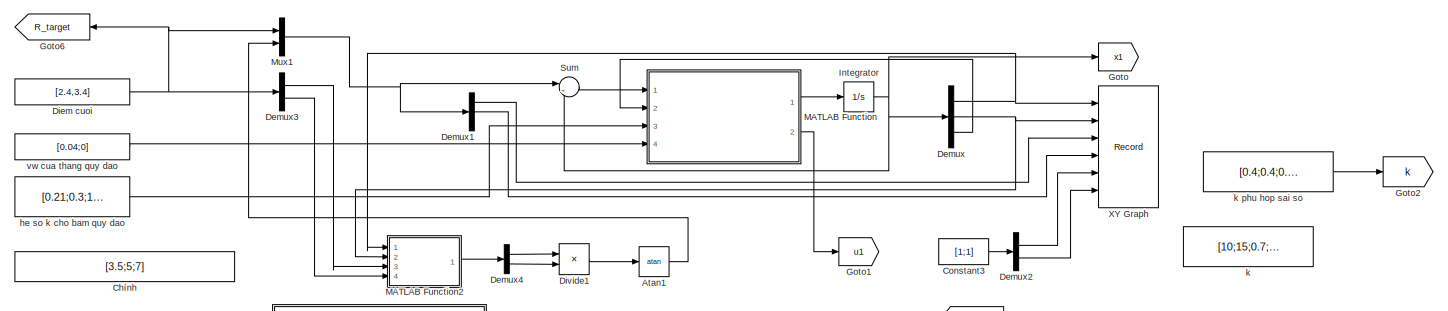
[diagram: root canvas - part 1/2, full width, top band]
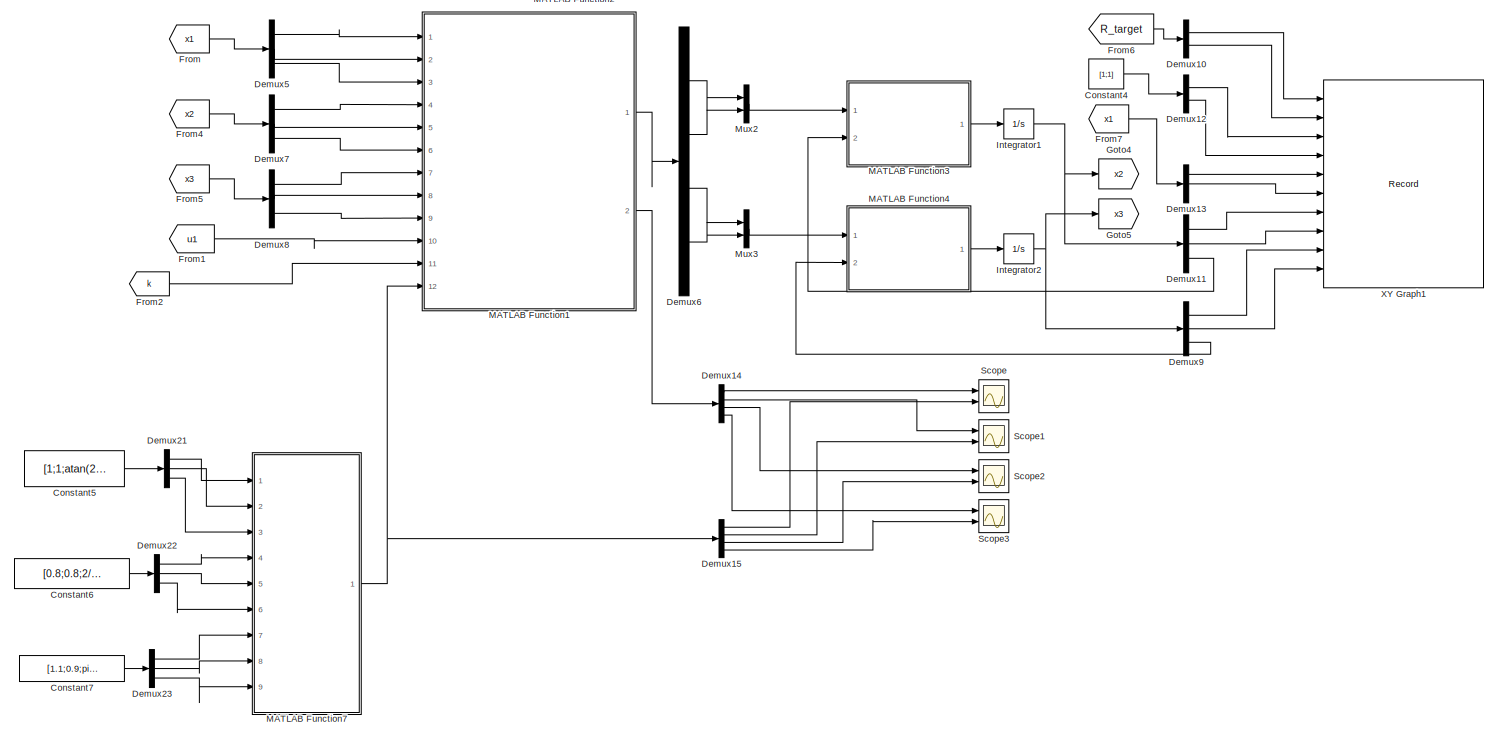
[diagram: root canvas - part 2/2, full width, middle band]
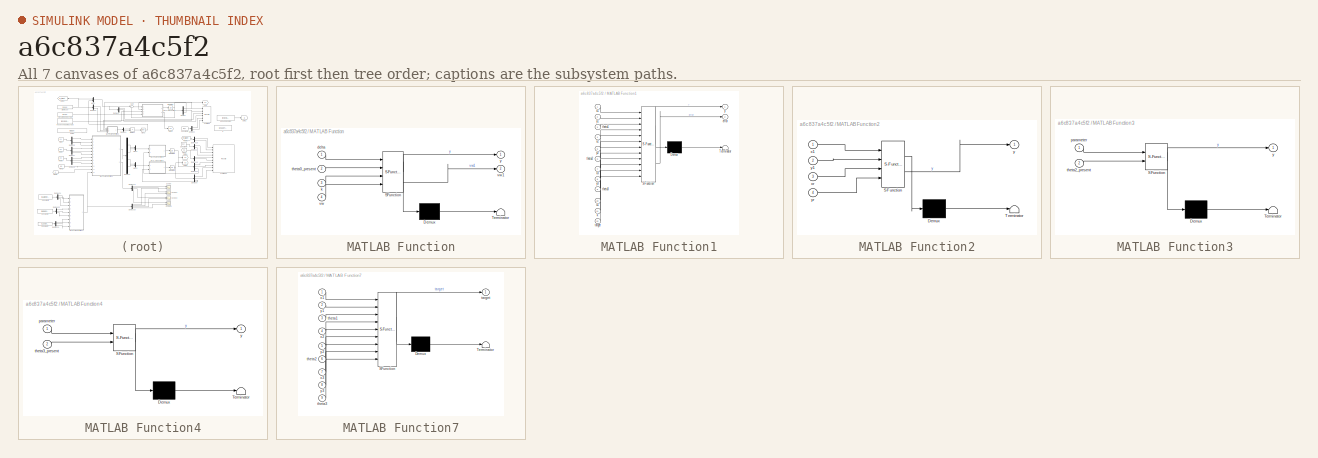
[diagram: thumbnail index - all 7 canvases of the model, root first then tree order]
MODEL slx_a6c837a4c5f2
KIND model
CONFIG AbsTol = auto
CONFIG EnableMultiTasking = off
CONFIG FixedStep = 0.01
CONFIG MaxStep = auto
CONFIG MinStep = auto
CONFIG RelTol = 1e-3
CONFIG SampleTimeConstraint = Unconstrained
CONFIG SolverName = FixedStepAuto
CONFIG StartTime = 0.0
CONFIG StopTime = 15
BLOCK [Trigonometry] Atan1
  Operator = atan
  Ports = [1, 1]
BLOCK [Constant] Chính
  Value = [3.5;5;7]
BLOCK [Constant] Constant3
  Value = [1;1]
BLOCK [Constant] Constant4
  Value = [1;1]
BLOCK [Constant] Constant5
  Value = [1;1;atan(2.4/1.4)]
BLOCK [Constant] Constant6
  Value = [0.8;0.8;2/3*pi]
BLOCK [Constant] Constant7
  Value = [1.1;0.9;pi/4]
BLOCK [Demux] Demux
  Outputs = 3
  Ports = [1, 3]
BLOCK [Demux] Demux1
  Outputs = 3
  Ports = [1, 3]
BLOCK [Demux] Demux10
  Outputs = 2
  Ports = [1, 2]
BLOCK [Demux] Demux11
  Outputs = 3
  Ports = [1, 3]
BLOCK [Demux] Demux12
  Outputs = 2
  Ports = [1, 2]
BLOCK [Demux] Demux13
  Outputs = 3
  Ports = [1, 3]
BLOCK [Demux] Demux14
  Ports = [1, 4]
BLOCK [Demux] Demux15
  Ports = [1, 4]
BLOCK [Demux] Demux2
  Outputs = 2
  Ports = [1, 2]
BLOCK [Demux] Demux21
  Outputs = 3
  Ports = [1, 3]
BLOCK [Demux] Demux22
  Outputs = 3
  Ports = [1, 3]
BLOCK [Demux] Demux23
  Outputs = 3
  Ports = [1, 3]
BLOCK [Demux] Demux3
  Outputs = 2
  Ports = [1, 2]
BLOCK [Demux] Demux4
  Outputs = 2
  Ports = [1, 2]
BLOCK [Demux] Demux5
  Outputs = 3
  Ports = [1, 3]
BLOCK [Demux] Demux6
  Ports = [1, 4]
BLOCK [Demux] Demux7
  Outputs = 3
  Ports = [1, 3]
BLOCK [Demux] Demux8
  Outputs = 3
  Ports = [1, 3]
BLOCK [Demux] Demux9
  Outputs = 3
  Ports = [1, 3]
BLOCK [Constant] Diem cuoi
  Value = [2.4,3.4]
BLOCK [Product] Divide1
  Inputs = /*
  Ports = [2, 1]
BLOCK [From] From
  GotoTag = x1
BLOCK [From] From1
  GotoTag = u1
BLOCK [From] From2
  GotoTag = k
BLOCK [From] From4
  GotoTag = x2
BLOCK [From] From5
  GotoTag = x3
BLOCK [From] From6
  GotoTag = R_target
BLOCK [From] From7
  GotoTag = x1
BLOCK [Goto] Goto
  GotoTag = x1
BLOCK [Goto] Goto1
  GotoTag = u1
BLOCK [Goto] Goto2
  GotoTag = k
BLOCK [Goto] Goto4
  GotoTag = x2
BLOCK [Goto] Goto5
  GotoTag = x3
BLOCK [Goto] Goto6
  GotoTag = R_target
  NameLocation = top
BLOCK [Integrator] Integrator
  InitialCondition = [1;1;atan(2.4/1.4)]
  Ports = [1, 1]
BLOCK [Integrator] Integrator1
  InitialCondition = [0.8;0.8;2/3*pi]
  Ports = [1, 1]
BLOCK [Integrator] Integrator2
  InitialCondition = [1.1;0.9;pi/4]
  Ports = [1, 1]
BLOCK [SubSystem] MATLAB Function
  ErrorFcn = Stateflow.Translate.translate
  PermitHierarchicalResolution = ExplicitOnly
  Ports = [4, 2]
  RequestExecContextInheritance = off
  SFBlockType = MATLAB Function
  TreatAsAtomicUnit = on
BLOCK [Demux] MATLAB Function/ Demux 
  Outputs = 1
  Ports = [1, 1]
BLOCK [S-Function] MATLAB Function/ SFunction 
  EnableBusSupport = on
  FunctionName = sf_sfun
  PortCounts = [4 3]
  Ports = [4, 3]
  SFcnIsStateOwnerBlock = off
  SFunctionDeploymentMode = off
  Tag = Stateflow S-Function 2
BLOCK [Terminator] MATLAB Function/ Terminator 
BLOCK [Inport] MATLAB Function/delta
BLOCK [Inport] MATLAB Function/k
  Port = 3
BLOCK [Inport] MATLAB Function/theta0_present
  Port = 2
BLOCK [Inport] MATLAB Function/vw
  Port = 4
BLOCK [Outport] MATLAB Function/vw1
  Port = 2
BLOCK [Outport] MATLAB Function/y
  VectorParamsAs1DForOutWhenUnconnected = off
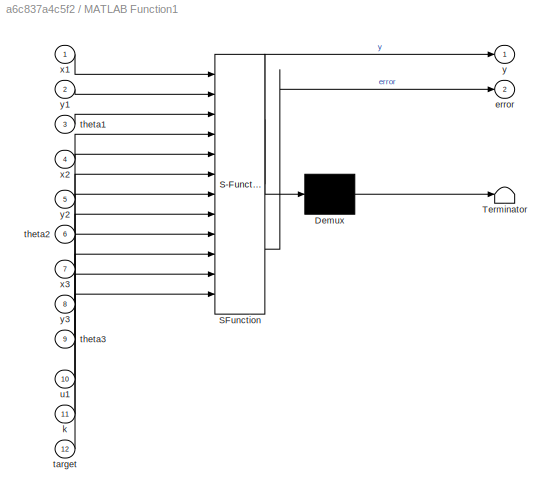
BLOCK [SubSystem] MATLAB Function1
  ErrorFcn = Stateflow.Translate.translate
  PermitHierarchicalResolution = ExplicitOnly
  Ports = [12, 2]
  RequestExecContextInheritance = off
  SFBlockType = MATLAB Function
  TreatAsAtomicUnit = on
BLOCK [Demux] MATLAB Function1/ Demux 
  Outputs = 1
  Ports = [1, 1]
BLOCK [S-Function] MATLAB Function1/ SFunction 
  EnableBusSupport = on
  FunctionName = sf_sfun
  PortCounts = [12 3]
  Ports = [12, 3]
  SFcnIsStateOwnerBlock = off
  SFunctionDeploymentMode = off
  Tag = Stateflow S-Function 1
BLOCK [Terminator] MATLAB Function1/ Terminator 
BLOCK [Outport] MATLAB Function1/error
  Port = 2
BLOCK [Inport] MATLAB Function1/k
  Port = 11
BLOCK [Inport] MATLAB Function1/target
  Port = 12
BLOCK [Inport] MATLAB Function1/theta1
  Port = 3
BLOCK [Inport] MATLAB Function1/theta2
  Port = 6
BLOCK [Inport] MATLAB Function1/theta3
  Port = 9
BLOCK [Inport] MATLAB Function1/u1
  Port = 10
BLOCK [Inport] MATLAB Function1/x1
BLOCK [Inport] MATLAB Function1/x2
  Port = 4
BLOCK [Inport] MATLAB Function1/x3
  Port = 7
BLOCK [Outport] MATLAB Function1/y
  VectorParamsAs1DForOutWhenUnconnected = off
BLOCK [Inport] MATLAB Function1/y1
  Port = 2
BLOCK [Inport] MATLAB Function1/y2
  Port = 5
BLOCK [Inport] MATLAB Function1/y3
  Port = 8
BLOCK [SubSystem] MATLAB Function2
  ErrorFcn = Stateflow.Translate.translate
  PermitHierarchicalResolution = ExplicitOnly
  Ports = [4, 1]
  RequestExecContextInheritance = off
  SFBlockType = MATLAB Function
  TreatAsAtomicUnit = on
BLOCK [Demux] MATLAB Function2/ Demux 
  Outputs = 1
  Ports = [1, 1]
BLOCK [S-Function] MATLAB Function2/ SFunction 
  EnableBusSupport = on
  FunctionName = sf_sfun
  PortCounts = [4 2]
  Ports = [4, 2]
  SFcnIsStateOwnerBlock = off
  SFunctionDeploymentMode = off
  Tag = Stateflow S-Function 3
BLOCK [Terminator] MATLAB Function2/ Terminator 
BLOCK [Inport] MATLAB Function2/x1
BLOCK [Inport] MATLAB Function2/xr
  Port = 3
BLOCK [Outport] MATLAB Function2/y
  VectorParamsAs1DForOutWhenUnconnected = off
BLOCK [Inport] MATLAB Function2/y1
  Port = 2
BLOCK [Inport] MATLAB Function2/yr
  Port = 4
BLOCK [SubSystem] MATLAB Function3
  ErrorFcn = Stateflow.Translate.translate
  PermitHierarchicalResolution = ExplicitOnly
  Ports = [2, 1]
  RequestExecContextInheritance = off
  SFBlockType = MATLAB Function
  TreatAsAtomicUnit = on
BLOCK [Demux] MATLAB Function3/ Demux 
  Outputs = 1
  Ports = [1, 1]
BLOCK [S-Function] MATLAB Function3/ SFunction 
  EnableBusSupport = on
  FunctionName = sf_sfun
  PortCounts = [2 2]
  Ports = [2, 2]
  SFcnIsStateOwnerBlock = off
  SFunctionDeploymentMode = off
  Tag = Stateflow S-Function 4
BLOCK [Terminator] MATLAB Function3/ Terminator 
BLOCK [Inport] MATLAB Function3/parameter
BLOCK [Inport] MATLAB Function3/theta2_present
  Port = 2
BLOCK [Outport] MATLAB Function3/y
  VectorParamsAs1DForOutWhenUnconnected = off
BLOCK [SubSystem] MATLAB Function4
  ErrorFcn = Stateflow.Translate.translate
  PermitHierarchicalResolution = ExplicitOnly
  Ports = [2, 1]
  RequestExecContextInheritance = off
  SFBlockType = MATLAB Function
  TreatAsAtomicUnit = on
BLOCK [Demux] MATLAB Function4/ Demux 
  Outputs = 1
  Ports = [1, 1]
BLOCK [S-Function] MATLAB Function4/ SFunction 
  EnableBusSupport = on
  FunctionName = sf_sfun
  PortCounts = [2 2]
  Ports = [2, 2]
  SFcnIsStateOwnerBlock = off
  SFunctionDeploymentMode = off
  Tag = Stateflow S-Function 5
BLOCK [Terminator] MATLAB Function4/ Terminator 
BLOCK [Inport] MATLAB Function4/parameter
BLOCK [Inport] MATLAB Function4/theta3_present
  Port = 2
BLOCK [Outport] MATLAB Function4/y
  VectorParamsAs1DForOutWhenUnconnected = off
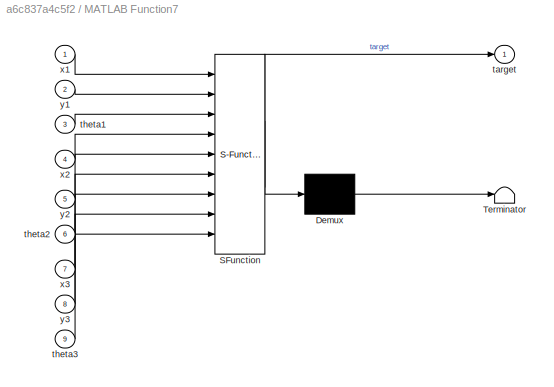
BLOCK [SubSystem] MATLAB Function7
  ErrorFcn = Stateflow.Translate.translate
  PermitHierarchicalResolution = ExplicitOnly
  Ports = [9, 1]
  RequestExecContextInheritance = off
  SFBlockType = MATLAB Function
  TreatAsAtomicUnit = on
BLOCK [Demux] MATLAB Function7/ Demux 
  Outputs = 1
  Ports = [1, 1]
BLOCK [S-Function] MATLAB Function7/ SFunction 
  EnableBusSupport = on
  FunctionName = sf_sfun
  PortCounts = [9 2]
  Ports = [9, 2]
  SFcnIsStateOwnerBlock = off
  SFunctionDeploymentMode = off
  Tag = Stateflow S-Function 11
BLOCK [Terminator] MATLAB Function7/ Terminator 
BLOCK [Outport] MATLAB Function7/target
  VectorParamsAs1DForOutWhenUnconnected = off
BLOCK [Inport] MATLAB Function7/theta1
  Port = 3
BLOCK [Inport] MATLAB Function7/theta2
  Port = 6
BLOCK [Inport] MATLAB Function7/theta3
  Port = 9
BLOCK [Inport] MATLAB Function7/x1
BLOCK [Inport] MATLAB Function7/x2
  Port = 4
BLOCK [Inport] MATLAB Function7/x3
  Port = 7
BLOCK [Inport] MATLAB Function7/y1
  Port = 2
BLOCK [Inport] MATLAB Function7/y2
  Port = 5
BLOCK [Inport] MATLAB Function7/y3
  Port = 8
BLOCK [Mux] Mux1
  DisplayOption = bar
  Inputs = 2
  Ports = [2, 1]
BLOCK [Mux] Mux2
  DisplayOption = bar
  Inputs = 2
  Ports = [2, 1]
BLOCK [Mux] Mux3
  DisplayOption = bar
  Inputs = 2
  Ports = [2, 1]
BLOCK [Scope] Scope
  Floating = off
  NumInputPorts = 2
  Ports = [2]
  ScopeSpecificationString = Simulink.scopes.TimeScopeBlockCfg('CurrentConfiguration', extmgr.ConfigurationSet(extmgr.Configuration('Core','General UI',true),extmgr.Configuration('Core','Source UI',true),extmgr.Configuration('Sources','WiredSimulink',true),extmgr.Configuration('Visuals','Time Domain',true,'SerializedDisplays',{struct('MinYLimReal','0.26817','MaxYLimReal','0.3237','YLabelReal','','MinYLimMag','0.26817','MaxYLi...<+1335ch>
BLOCK [Scope] Scope1
  Floating = off
  NumInputPorts = 2
  Ports = [2]
  ScopeSpecificationString = Simulink.scopes.TimeScopeBlockCfg('CurrentConfiguration', extmgr.ConfigurationSet(extmgr.Configuration('Core','General UI',true),extmgr.Configuration('Core','Source UI',true),extmgr.Configuration('Sources','WiredSimulink',true,'DataLoggingVariableName','ScopeData1'),extmgr.Configuration('Visuals','Time Domain',true,'SerializedDisplays',{struct('MinYLimReal','0.13999','MaxYLimReal','4.5223','YLabel...<+1374ch>
BLOCK [Scope] Scope2
  Floating = off
  NumInputPorts = 2
  Ports = [2]
  ScopeSpecificationString = Simulink.scopes.TimeScopeBlockCfg('CurrentConfiguration', extmgr.ConfigurationSet(extmgr.Configuration('Core','General UI',true),extmgr.Configuration('Core','Source UI',true),extmgr.Configuration('Sources','WiredSimulink',true,'DataLoggingVariableName','ScopeData2'),extmgr.Configuration('Visuals','Time Domain',true,'SerializedDisplays',{struct('MinYLimReal','-0.03825','MaxYLimReal','0.39149','YLab...<+1380ch>
BLOCK [Scope] Scope3
  Floating = off
  NumInputPorts = 2
  Ports = [2]
  ScopeSpecificationString = Simulink.scopes.TimeScopeBlockCfg('CurrentConfiguration', extmgr.ConfigurationSet(extmgr.Configuration('Core','General UI',true),extmgr.Configuration('Core','Source UI',true),extmgr.Configuration('Sources','WiredSimulink',true,'DataLoggingVariableName','ScopeData3'),extmgr.Configuration('Visuals','Time Domain',true,'SerializedDisplays',{struct('MinYLimReal','0.22971','MaxYLimReal','0.58469','YLabe...<+1378ch>
BLOCK [Sum] Sum
  Inputs = |+-
  Ports = [2, 1]
BLOCK [Record] XY Graph
  CompatibilityTag = XY
  FileSettingsInternal = {"entries":[{"content":{"excelSettings":{"content":{},"type":"Streamout.ExcelSettings"}},"type":"Streamout.FileSettingStorage","uuid":"913d583a-c7ca-4ae4-b2df-6f825b279ffb"}],"packageUris":["http://schema.mathworks.com/mf0/streamout_blocks/R2020a"],"version":"1.0"}
  Layout = [1 1]
  Ports = [6]
  SignalsInternal = {"entries":[{"content":{"signals":[{"content":{"blockPath":["ba_xe/XY Graph"],"channel":[],"dimensions":[1],"domain":"ba_xe/XY Graph","lineColor":"#edb120","plots":[1],"port":1,"sid":[""],"signalID":1417,"signalName":"Demux:1"},"type":"RecordBlkView.Signal","uuid":"835e361d-6005-4225-8b89-f50d614e2cb5"},{"content":{"blockPath":["ba_xe/XY Graph"],"channel":[],"dimensions":[1],"domain":"ba_xe/XY Gra...<+1435ch>
  VisualizationBindings = {"xyplotplugin":{"info":[{"series":[{"bindingParametersList":[{"parameter":"X-Axis","signalID":1449,"signalName":"Demux1:1"},{"parameter":"Y-Axis","signalID":1453,"signalName":"Demux1:2"}],"seriesID":6565},{"bindingParametersList":[{"parameter":"X-Axis","signalID":1417,"signalName":"Demux:1"},{"parameter":"Y-Axis","signalID":1421,"signalName":"Demux:2"}],"seriesID":57224},{"bindingParametersList":...<+192ch>
BLOCK [Record] XY Graph1
  CompatibilityTag = XY
  FileSettingsInternal = {"entries":[{"content":{"excelSettings":{"content":{},"type":"Streamout.ExcelSettings"}},"type":"Streamout.FileSettingStorage","uuid":"9180f49e-0466-4a03-b380-b3340658523c"}],"packageUris":["http://schema.mathworks.com/mf0/streamout_blocks/R2020a"],"version":"1.0"}
  Layout = [1 1]
  Ports = [10]
  SignalsInternal = {"entries":[{"content":{"signals":[{"content":{"blockPath":["ba_xe/XY Graph1"],"channel":[],"dimensions":[1],"domain":"ba_xe/XY Graph1","lineColor":"#64d413","plots":[1],"port":5,"sid":[""],"signalID":1425,"signalName":"Demux13:1"},"type":"RecordBlkView.Signal","uuid":"40623cd3-fd37-4be6-82f0-8d19e25bf14b"},{"content":{"blockPath":["ba_xe/XY Graph1"],"channel":[],"dimensions":[1],"domain":"ba_xe/X...<+2558ch>
  VisualizationBindings = {"xyplotplugin":{"info":[{"series":[{"bindingParametersList":[{"parameter":"X-Axis","signalID":1441,"signalName":"Demux9:1"},{"parameter":"Y-Axis","signalID":1445,"signalName":"Demux9:2"}],"seriesID":12018},{"bindingParametersList":[{"parameter":"X-Axis","signalID":1465,"signalName":"Demux10:1"},{"parameter":"Y-Axis","signalID":1469,"signalName":"Demux10:2"}],"seriesID":34676},{"bindingParametersL...<+602ch>
BLOCK [Constant] he so k cho bam quy dao
  Value = [0.21;0.3;1.25]
BLOCK [Constant] k
  Value = [10;15;0.7;0.5]
BLOCK [Constant] k phu hop sai so
  Value = [0.4;0.4;0.0412;0.054]
BLOCK [Constant] vw cua thang quy dao
  Value = [0.04;0]
LINE Atan1:1 -> Mux1:2
LINE Constant3:1 -> Demux2:1
LINE Constant4:1 -> Demux12:1
LINE Constant5:1 -> Demux21:1
LINE Constant6:1 -> Demux22:1
LINE Constant7:1 -> Demux23:1
LINE Demux10:1 -> XY Graph1:1
LINE Demux10:2 -> XY Graph1:2
LINE Demux11:1 -> XY Graph1:7
LINE Demux11:2 -> XY Graph1:8
LINE Demux11:3 -> MATLAB Function3:2
LINE Demux12:1 -> XY Graph1:3
LINE Demux12:2 -> XY Graph1:4
LINE Demux13:1 -> XY Graph1:5
LINE Demux13:2 -> XY Graph1:6
LINE Demux14:1 -> Scope:1
LINE Demux14:2 -> Scope1:1
LINE Demux14:3 -> Scope2:1
LINE Demux14:4 -> Scope3:1
LINE Demux15:1 -> Scope:2
LINE Demux15:2 -> Scope1:2
LINE Demux15:3 -> Scope2:2
LINE Demux15:4 -> Scope3:2
LINE Demux1:1 -> XY Graph:3
LINE Demux1:2 -> XY Graph:4
LINE Demux21:1 -> MATLAB Function7:1
LINE Demux21:2 -> MATLAB Function7:2
LINE Demux21:3 -> MATLAB Function7:3
LINE Demux22:1 -> MATLAB Function7:4
LINE Demux22:2 -> MATLAB Function7:5
LINE Demux22:3 -> MATLAB Function7:6
LINE Demux23:1 -> MATLAB Function7:7
LINE Demux23:2 -> MATLAB Function7:8
LINE Demux23:3 -> MATLAB Function7:9
LINE Demux2:1 -> XY Graph:5
LINE Demux2:2 -> XY Graph:6
LINE Demux3:1 -> MATLAB Function2:3
LINE Demux3:2 -> MATLAB Function2:4
LINE Demux4:1 -> Divide1:1
LINE Demux4:2 -> Divide1:2
LINE Demux5:1 -> MATLAB Function1:1
LINE Demux5:2 -> MATLAB Function1:2
LINE Demux5:3 -> MATLAB Function1:3
LINE Demux6:1 -> Mux2:1
LINE Demux6:2 -> Mux2:2
LINE Demux6:3 -> Mux3:1
LINE Demux6:4 -> Mux3:2
LINE Demux7:1 -> MATLAB Function1:4
LINE Demux7:2 -> MATLAB Function1:5
LINE Demux7:3 -> MATLAB Function1:6
LINE Demux8:1 -> MATLAB Function1:7
LINE Demux8:2 -> MATLAB Function1:8
LINE Demux8:3 -> MATLAB Function1:9
LINE Demux9:1 -> XY Graph1:9
LINE Demux9:2 -> XY Graph1:10
LINE Demux9:3 -> MATLAB Function4:2
NET Demux:1 -> MATLAB Function2:1, XY Graph:1
NET Demux:2 -> MATLAB Function2:2, XY Graph:2
LINE Demux:3 -> MATLAB Function:2
NET Diem cuoi:1 -> Demux3:1, Goto6:1, Mux1:1
LINE Divide1:1 -> Atan1:1
LINE From1:1 -> MATLAB Function1:10
LINE From2:1 -> MATLAB Function1:11
LINE From4:1 -> Demux7:1
LINE From5:1 -> Demux8:1
LINE From6:1 -> Demux10:1
LINE From7:1 -> Demux13:1
LINE From:1 -> Demux5:1
NET Integrator1:1 -> Demux11:1, Goto4:1
NET Integrator2:1 -> Demux9:1, Goto5:1
NET Integrator:1 -> Demux:1, Goto:1, Sum:2
LINE MATLAB Function1:1 -> Demux6:1
LINE MATLAB Function1:2 -> Demux14:1
LINE MATLAB Function2:1 -> Demux4:1
LINE MATLAB Function3:1 -> Integrator1:1
LINE MATLAB Function4:1 -> Integrator2:1
NET MATLAB Function7:1 -> Demux15:1, MATLAB Function1:12
LINE MATLAB Function:1 -> Integrator:1
LINE MATLAB Function:2 -> Goto1:1
NET Mux1:1 -> Demux1:1, Sum:1
LINE Mux2:1 -> MATLAB Function3:1
LINE Mux3:1 -> MATLAB Function4:1
LINE Sum:1 -> MATLAB Function:1
LINE he so k cho bam quy dao:1 -> MATLAB Function:3
LINE k phu hop sai so:1 -> Goto2:1
LINE vw cua thang quy dao:1 -> MATLAB Function:4
note: NET lines group one-source signal fan-out (src -> all destinations, sorted); 1:1 wires keep LINE
CHART MATLAB Function1 states=1 transitions=1
  STATE_LABEL 'eML_blk_kernel()'
  STATE_LABEL 'SCRIPT:\nfunction [y,error] = fcn(x1,y1,theta1,x2,y2,theta2,x3,y3,theta3,u1,k,target)\n%#coegen\nd=0.09;\n\nL12_x=x1-x2-d*cos(theta2);\nL12_y=y1-y2-d*sin(theta2);\nL13_x=x1-x3-d*cos(theta3);\nL13_y=y1-y3-d*sin(theta3);\nL23_x=x2-x3-d*cos(theta3);\nL23_y=y2-y3-d*sin(theta3);\n\nL12=sqrt(L12_x^2+L12_y^2);\nL13=sqrt(L13_x^2+L13_y^2);\nL23=sqrt(L23_x^2+L23_y^2);\n\nmega12=atan(L12_y/L12_x)-theta1+pi;\nmega13=atan(L13_...<+668ch>'
CHART MATLAB Function states=1 transitions=1
  STATE_LABEL 'eML_blk_kernel()'
  STATE_LABEL 'SCRIPT:\nfunction [y,vw1] = fcn(delta,theta0_present,k,vw)\n%#codegen\nA=[cos(theta0_present)   sin(theta0_present) 0;\n    -sin(theta0_present) cos(theta0_present) 0;\n    0                    0                    1];\ne=A*delta;\nV_c=[vw(1)*cos(e(3))+k(1)*e(1);\n    vw(2)+k(2)*vw(1)*e(2)+k(3)*vw(1)*sin(e(3))];\nMatrix=[cos(theta0_present) 0;\n        sin(theta0_present) 0;\n        0                   1];\n...<+29ch>'
CHART MATLAB Function2 states=1 transitions=1
  STATE_LABEL 'eML_blk_kernel()'
  STATE_LABEL 'SCRIPT:\nfunction y = fcn(x1,y1,xr,yr)\n%#codegen\nx_delta=xr-x1;\ny_delta=yr-y1;\nu=[x_delta;y_delta]\ny = u;'
CHART MATLAB Function3 states=1 transitions=1
  STATE_LABEL 'eML_blk_kernel()'
  STATE_LABEL 'SCRIPT:\nfunction y = fcn(parameter,theta2_present)\n%#codegen\nMatrix=[cos(theta2_present) 0;\n        sin(theta2_present) 0;\n        0                   1];\nu=Matrix*parameter;\ny = u;'
CHART MATLAB Function4 states=1 transitions=1
  STATE_LABEL 'eML_blk_kernel()'
  STATE_LABEL 'SCRIPT:\nfunction y = fcn(parameter,theta3_present)\n%#codegen\nMatrix=[cos(theta3_present) 0;\n        sin(theta3_present) 0;\n        0                   1];\nu=Matrix*parameter;\ny = u;'
CHART MATLAB Function7 states=1 transitions=1
  STATE_LABEL 'eML_blk_kernel()'
  STATE_LABEL 'SCRIPT:\nfunction target = fcn(x1,y1,theta1,x2,y2,theta2,x3,y3,theta3)\n%#codegen\nd=0.09;\n\nL12_x=x1-x2-d*cos(theta2);\nL12_y=y1-y2-d*sin(theta2);\nL13_x=x1-x3-d*cos(theta3);\nL13_y=y1-y3-d*sin(theta3);\nL23_x=x2-x3-d*cos(theta3);\nL23_y=y2-y3-d*sin(theta3);\n\nL12=sqrt(L12_x^2+L12_y^2);\nL13=sqrt(L13_x^2+L13_y^2);\nL23=sqrt(L23_x^2+L23_y^2);\n\nmega12=atan(L12_y/L12_x)-theta1+pi;\ntarget=[L12;mega12;L13;L23];\n\n'
CHART  states=0 transitions=0
CHART  states=0 transitions=0
CHART  states=0 transitions=0
CHART  states=0 transitions=0
CHART  states=0 transitions=0
CHART  states=0 transitions=0
